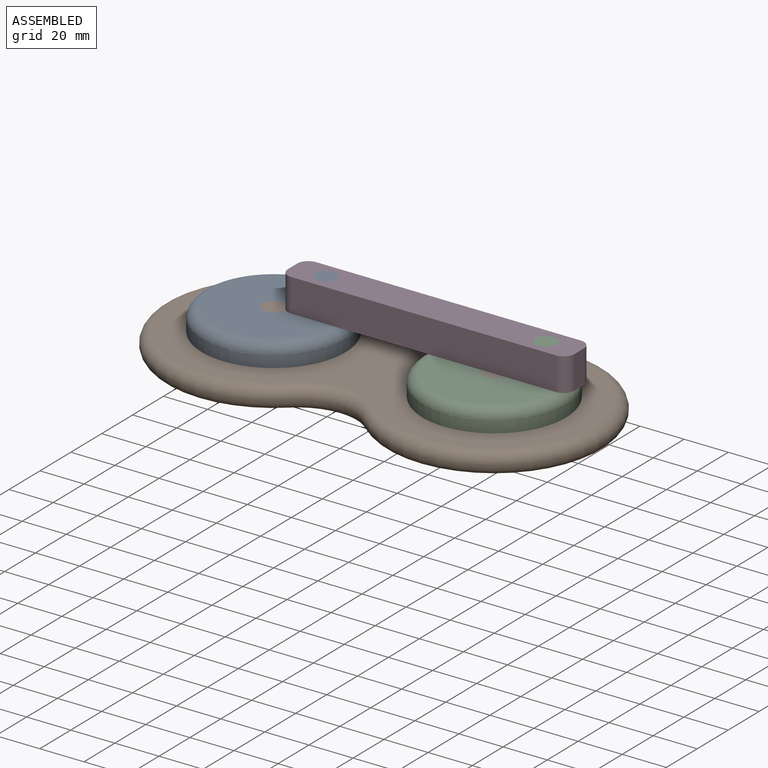
[diagram: assembled view]
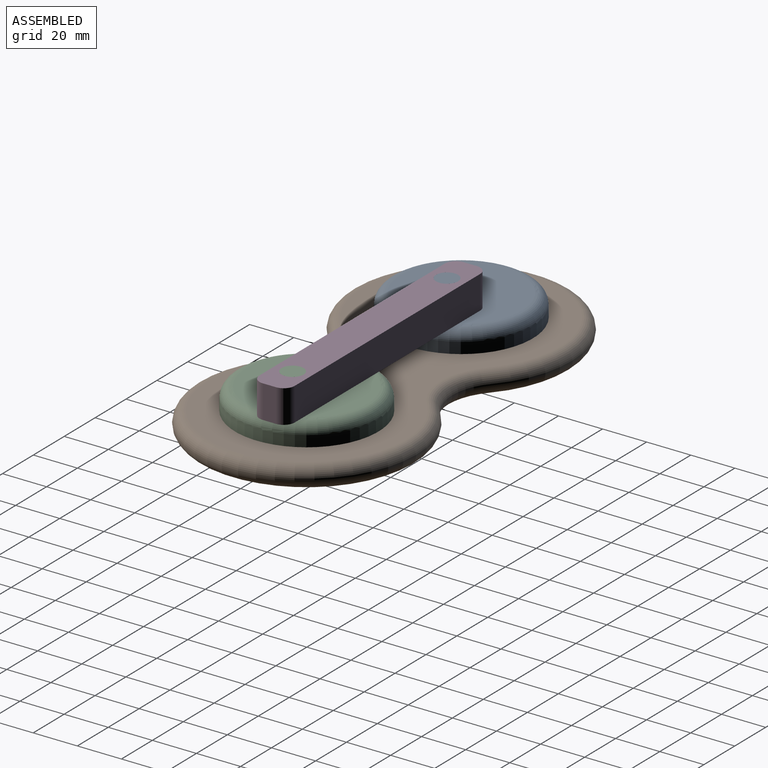
[diagram: assembled view, second angle]
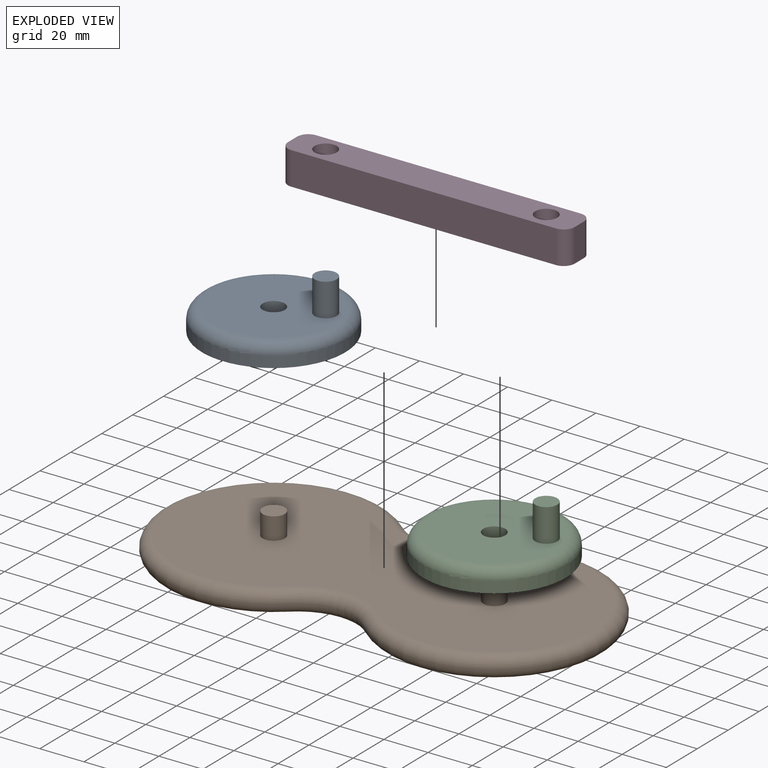
[diagram: exploded view]
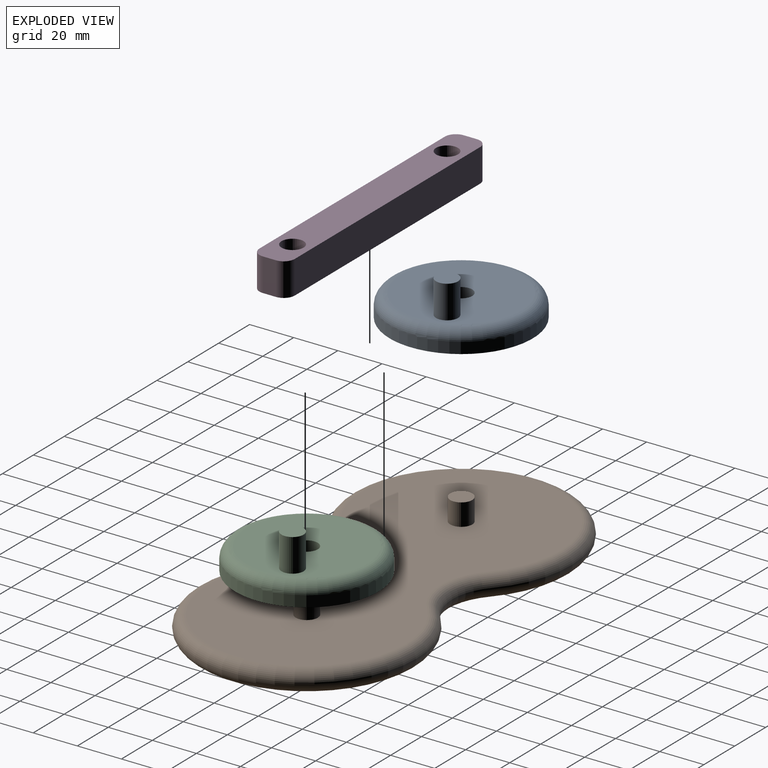
[diagram: exploded view, second angle]
ASSEMBLY  parts=4 mates=4
PART A: 7 faces, bbox 70.4x70.4x25 mm
  f0: cylinder r=5mm len=10mm, axis (0,0,-1), area 314.2mm2, adj f2,f3
  f1: cylinder r=32.5mm len=65mm, axis (0,0,-1), area 1021mm2, adj f3,f6
  f2: plane 55x55mm, normal (0,0,1), area 2218.7mm2, adj f0,f4,f6
  f3: plane 65x65mm, normal (0,0,-1), area 3239.8mm2, adj f0,f1
  f4: cylinder r=5mm len=15mm, axis (0,0,-1), area 471.2mm2, adj f2,f5
  f5: plane 10x10mm, normal (0,0,1), area 78.5mm2, adj f4
  f6: torus R=27.5mm, axis (0,0,1), area 1514.2mm2, adj f1,f2
PART B: 10 faces, bbox 208.2x108.2x20 mm
  f0: plane 190x90mm, normal (0,0,1), area 13436.7mm2, adj f2,f4,f6,f7,f8,f9
  f1: plane 190x90mm, normal (0,0,-1), area 13593.8mm2, adj f6,f7,f8,f9
  f2: cylinder r=5mm len=10mm, axis (0,0,-1), area 314.2mm2, adj f0,f3
  f3: plane 10x10mm, normal (0,0,1), area 78.5mm2, adj f2
  f4: cylinder r=5mm len=10mm, axis (0,0,-1), area 314.2mm2, adj f0,f5
  f5: plane 10x10mm, normal (0,0,1), area 78.5mm2, adj f4
  f6: torus R=45mm, axis (0,0,1), area 3482.3mm2, adj f0,f1,f7,f8
  f7: torus R=30mm, axis (0,0,1), area 614.8mm2, adj f0,f1,f6,f9
  f8: torus R=30mm, axis (0,0,1), area 614.8mm2, adj f0,f1,f6,f9
  f9: torus R=45mm, axis (0,0,1), area 3482.3mm2, adj f0,f1,f7,f8
PART C: 7 faces, bbox 70.4x70.4x25 mm
  f0: cylinder r=5mm len=10mm, axis (0,0,-1), area 314.2mm2, adj f2,f3
  f1: cylinder r=32.5mm len=65mm, axis (0,0,-1), area 1021mm2, adj f3,f6
  f2: plane 55x55mm, normal (0,0,1), area 2218.7mm2, adj f0,f4,f6
  f3: plane 65x65mm, normal (0,0,-1), area 3239.8mm2, adj f0,f1
  f4: cylinder r=5mm len=15mm, axis (0,0,-1), area 471.2mm2, adj f2,f5
  f5: plane 10x10mm, normal (0,0,1), area 78.5mm2, adj f4
  f6: torus R=27.5mm, axis (0,0,1), area 1514.2mm2, adj f1,f2
PART D: 12 faces, bbox 130x16x15 mm
  f0: plane 130x16mm, normal (0,0,1), area 1901.5mm2, adj f1,f3,f4,f5,f6,f7,f8,f9
  f1: plane 15x6mm, normal (-1,0,0), area 90mm2, adj f0,f2,f8,f9
  f2: plane 130x16mm, normal (0,0,-1), area 1901.5mm2, adj f1,f3,f4,f5,f6,f7,f8,f9
  f3: cylinder r=5mm len=15mm, axis (0,0,-1), area 471.2mm2, adj f0,f2
  f4: plane 120x15mm, normal (0,-1,0), area 1800mm2, adj f0,f2,f9,f10
  f5: plane 120x15mm, normal (0,1,0), area 1800mm2, adj f0,f2,f8,f11
  f6: plane 15x6mm, normal (1,0,0), area 90mm2, adj f0,f2,f10,f11
  f7: cylinder r=5mm len=15mm, axis (0,0,-1), area 471.2mm2, adj f0,f2
  f8: cylinder r=5mm len=15mm, axis (0,0,1), area 117.8mm2, adj f0,f1,f2,f5
  f9: cylinder r=5mm len=15mm, axis (0,0,-1), area 117.8mm2, adj f0,f1,f2,f4
  f10: cylinder r=5mm len=15mm, axis (0,0,1), area 117.8mm2, adj f0,f2,f4,f6
  f11: cylinder r=5mm len=15mm, axis (0,0,-1), area 117.8mm2, adj f0,f2,f5,f6
PLACE A rot(axis=(0,0,-1),160.3deg) t=(-194.13,-33.74,0)mm
PLACE B at identity fixed
PLACE C rot(axis=(0,0,-1),160.3deg) t=(0,0,0)mm
PLACE D t=(38.83,6.75,0)mm
MATE revolute D.f7 <-> A.f4  axis (0,0,-1) through (-81.17,6.75,20)mm
MATE revolute D.f3 <-> C.f4  axis (0,0,-1) through (18.83,6.75,20)mm
MATE revolute A.f1 <-> B.f2  axis (0,0,-1) through (-100,0,10)mm
MATE revolute C.f0 <-> B.f4  axis (0,0,-1) through (0,0,10)mm
